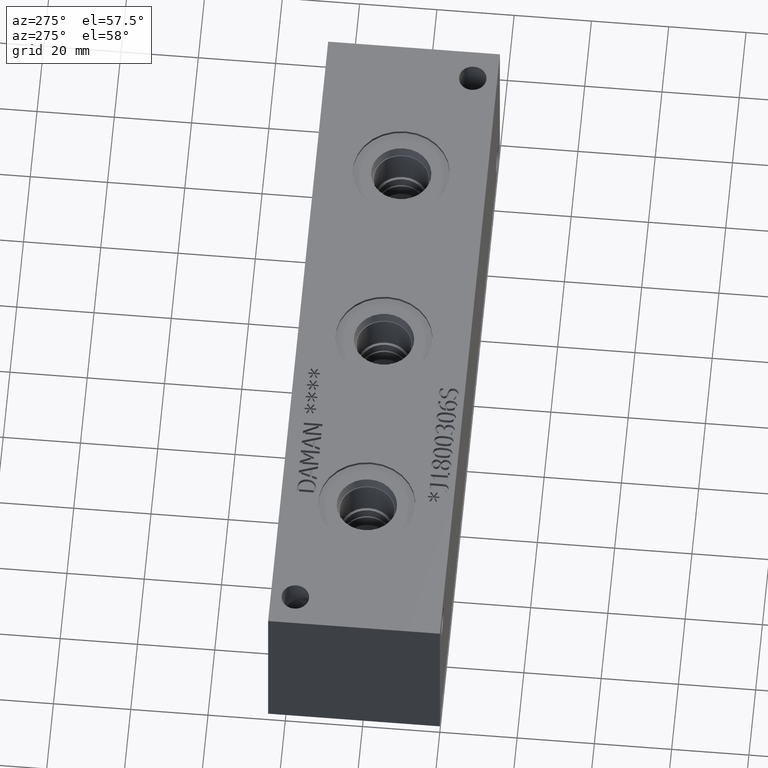
[diagram: clean part render]
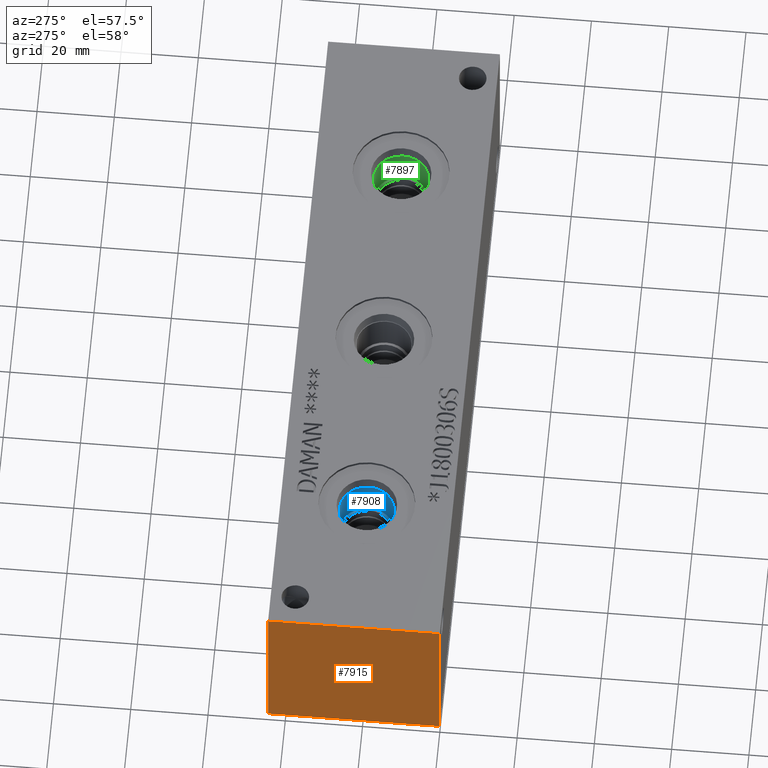
[diagram: same view with three faces highlighted in distinct colors, each labeled with its STEP entity id]
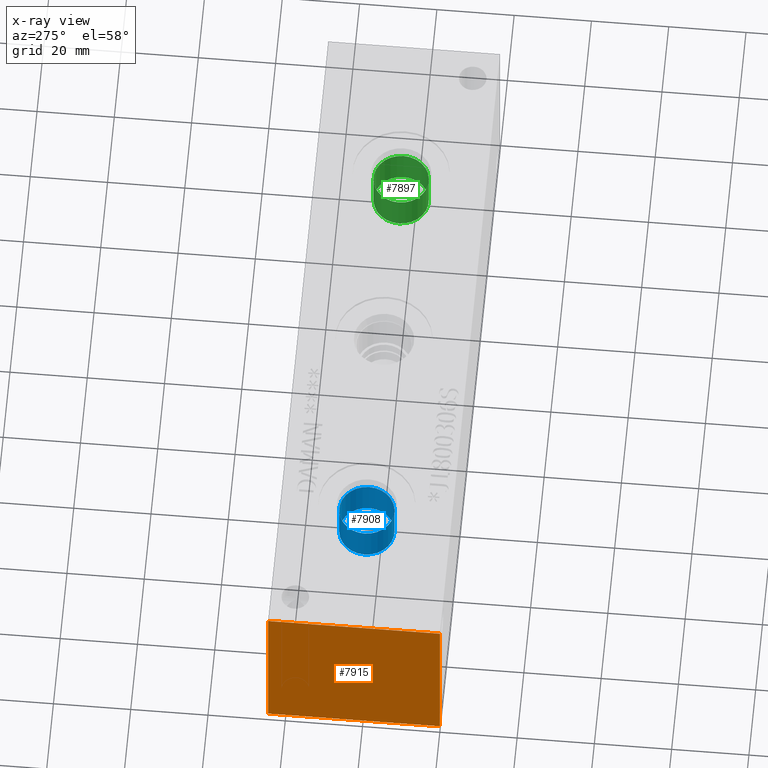
[diagram: x-ray of the same camera — body ghosted, the three highlighted faces saturated]
A machine part, auxiliary view with three faces highlighted in distinct colors.
The next image is the same camera in x-ray (body ghosted, the three faces saturated) — at least one of them is partly hidden behind the body in this view.
Their STEP definitions:

[orange] entity #7915 — the highlighted planar face has unit normal (-1, 0, 0).
#481=PLANE('',#8348);
#886=FACE_OUTER_BOUND('',#1336,.T.);
#1336=EDGE_LOOP('',(#7039,#7040,#7041,#7042));
#1622=LINE('',#12423,#2341);
#2062=LINE('',#13740,#2781);
#2063=LINE('',#13741,#2782);
#2064=LINE('',#13742,#2783);
#2341=VECTOR('',#8751,10.);
#2781=VECTOR('',#9895,10.);
#2782=VECTOR('',#9896,10.);
#2783=VECTOR('',#9897,10.);
#3367=VERTEX_POINT('',#12416);
#3370=VERTEX_POINT('',#12421);
#3766=VERTEX_POINT('',#13738);
#3767=VERTEX_POINT('',#13739);
#4271=EDGE_CURVE('',#3370,#3367,#1622,.T.);
#4864=EDGE_CURVE('',#3766,#3767,#2062,.T.);
#4865=EDGE_CURVE('',#3767,#3367,#2063,.T.);
#4866=EDGE_CURVE('',#3766,#3370,#2064,.T.);
#7039=ORIENTED_EDGE('',*,*,#4864,.T.);
#7040=ORIENTED_EDGE('',*,*,#4865,.T.);
#7041=ORIENTED_EDGE('',*,*,#4271,.F.);
#7042=ORIENTED_EDGE('',*,*,#4866,.F.);
#7915=ADVANCED_FACE('',(#886),#481,.T.);
#8348=AXIS2_PLACEMENT_3D('',#13737,#9893,#9894);
#8751=DIRECTION('',(0.,-1.,0.));
#9893=DIRECTION('center_axis',(-1.,0.,0.));
#9894=DIRECTION('ref_axis',(0.,-1.,0.));
#9895=DIRECTION('',(0.,-1.,0.));
#9896=DIRECTION('',(0.,0.,1.));
#9897=DIRECTION('',(0.,0.,1.));
#12416=CARTESIAN_POINT('',(0.,0.,44.45));
#12421=CARTESIAN_POINT('',(0.,44.45,44.45));
#12423=CARTESIAN_POINT('',(0.,44.45,44.45));
#13737=CARTESIAN_POINT('Origin',(0.,44.45,0.));
#13738=CARTESIAN_POINT('',(0.,44.45,0.));
#13739=CARTESIAN_POINT('',(0.,0.,0.));
#13740=CARTESIAN_POINT('',(0.,44.45,0.));
#13741=CARTESIAN_POINT('',(0.,0.,0.));
#13742=CARTESIAN_POINT('',(0.,44.45,0.));

[blue] entity #7908 — the highlighted cylindrical surface (bore or boss wall) has radius 7.1374 mm, axis along (0, 0, 1).
#80=CYLINDRICAL_SURFACE('',#8332,7.1374);
#201=CIRCLE('',#8329,7.1374);
#202=CIRCLE('',#8330,7.1374);
#204=CIRCLE('',#8333,7.1374);
#879=FACE_OUTER_BOUND('',#1328,.T.);
#1328=EDGE_LOOP('',(#7002,#7003,#7004,#7005,#7006));
#2056=LINE('',#13709,#2775);
#2775=VECTOR('',#9859,7.1374);
#3754=VERTEX_POINT('',#13700);
#3755=VERTEX_POINT('',#13701);
#3757=VERTEX_POINT('',#13707);
#4846=EDGE_CURVE('',#3754,#3755,#201,.T.);
#4847=EDGE_CURVE('',#3755,#3754,#202,.T.);
#4849=EDGE_CURVE('',#3757,#3757,#204,.T.);
#4850=EDGE_CURVE('',#3757,#3755,#2056,.T.);
#7002=ORIENTED_EDGE('',*,*,#4849,.F.);
#7003=ORIENTED_EDGE('',*,*,#4850,.T.);
#7004=ORIENTED_EDGE('',*,*,#4846,.F.);
#7005=ORIENTED_EDGE('',*,*,#4847,.F.);
#7006=ORIENTED_EDGE('',*,*,#4850,.F.);
#7908=ADVANCED_FACE('',(#879),#80,.F.);
#8329=AXIS2_PLACEMENT_3D('',#13702,#9849,#9850);
#8330=AXIS2_PLACEMENT_3D('',#13703,#9851,#9852);
#8332=AXIS2_PLACEMENT_3D('',#13706,#9855,#9856);
#8333=AXIS2_PLACEMENT_3D('',#13708,#9857,#9858);
#9849=DIRECTION('center_axis',(0.,0.,1.));
#9850=DIRECTION('ref_axis',(1.,0.,0.));
#9851=DIRECTION('center_axis',(0.,0.,1.));
#9852=DIRECTION('ref_axis',(1.,0.,0.));
#9855=DIRECTION('center_axis',(0.,0.,1.));
#9856=DIRECTION('ref_axis',(1.,0.,0.));
#9857=DIRECTION('center_axis',(0.,0.,-1.));
#9858=DIRECTION('ref_axis',(1.,0.,0.));
#9859=DIRECTION('',(0.,0.,-1.));
#13700=CARTESIAN_POINT('',(45.2374,22.225,30.9626));
#13701=CARTESIAN_POINT('',(30.9626,22.225,30.9626));
#13702=CARTESIAN_POINT('Origin',(38.1,22.225,30.9626));
#13703=CARTESIAN_POINT('Origin',(38.1,22.225,30.9626));
#13706=CARTESIAN_POINT('Origin',(38.1,22.225,37.7063));
#13707=CARTESIAN_POINT('',(30.9626,22.225,41.021));
#13708=CARTESIAN_POINT('Origin',(38.1,22.225,41.021));
#13709=CARTESIAN_POINT('',(30.9626,22.225,37.7063));

[green] entity #7897 — the highlighted cylindrical surface (bore or boss wall) has radius 7.1374 mm, axis along (0, 0, 1).
#75=CYLINDRICAL_SURFACE('',#8305,7.1374);
#170=CIRCLE('',#8277,7.1374);
#185=CIRCLE('',#8302,7.1374);
#186=CIRCLE('',#8303,7.1374);
#868=FACE_OUTER_BOUND('',#1315,.T.);
#1315=EDGE_LOOP('',(#6947,#6948,#6949,#6950,#6951));
#2047=LINE('',#13655,#2766);
#2766=VECTOR('',#9794,7.1374);
#3723=VERTEX_POINT('',#13599);
#3738=VERTEX_POINT('',#13648);
#3739=VERTEX_POINT('',#13649);
#4798=EDGE_CURVE('',#3723,#3723,#170,.T.);
#4821=EDGE_CURVE('',#3738,#3739,#185,.T.);
#4822=EDGE_CURVE('',#3739,#3738,#186,.T.);
#4824=EDGE_CURVE('',#3723,#3739,#2047,.T.);
#6947=ORIENTED_EDGE('',*,*,#4798,.T.);
#6948=ORIENTED_EDGE('',*,*,#4824,.T.);
#6949=ORIENTED_EDGE('',*,*,#4821,.F.);
#6950=ORIENTED_EDGE('',*,*,#4822,.F.);
#6951=ORIENTED_EDGE('',*,*,#4824,.F.);
#7897=ADVANCED_FACE('',(#868),#75,.F.);
#8277=AXIS2_PLACEMENT_3D('',#13601,#9728,#9729);
#8302=AXIS2_PLACEMENT_3D('',#13650,#9786,#9787);
#8303=AXIS2_PLACEMENT_3D('',#13651,#9788,#9789);
#8305=AXIS2_PLACEMENT_3D('',#13654,#9792,#9793);
#9728=DIRECTION('center_axis',(0.,0.,1.));
#9729=DIRECTION('ref_axis',(1.,0.,0.));
#9786=DIRECTION('center_axis',(0.,0.,1.));
#9787=DIRECTION('ref_axis',(1.,0.,0.));
#9788=DIRECTION('center_axis',(0.,0.,1.));
#9789=DIRECTION('ref_axis',(1.,0.,0.));
#9792=DIRECTION('center_axis',(0.,0.,1.));
#9793=DIRECTION('ref_axis',(1.,0.,0.));
#9794=DIRECTION('',(0.,0.,-1.));
#13599=CARTESIAN_POINT('',(132.5626,22.225,41.021));
#13601=CARTESIAN_POINT('Origin',(139.7,22.225,41.021));
#13648=CARTESIAN_POINT('',(146.8374,22.225,30.9626));
#13649=CARTESIAN_POINT('',(132.5626,22.225,30.9626));
#13650=CARTESIAN_POINT('Origin',(139.7,22.225,30.9626));
#13651=CARTESIAN_POINT('Origin',(139.7,22.225,30.9626));
#13654=CARTESIAN_POINT('Origin',(139.7,22.225,37.7063));
#13655=CARTESIAN_POINT('',(132.5626,22.225,37.7063));